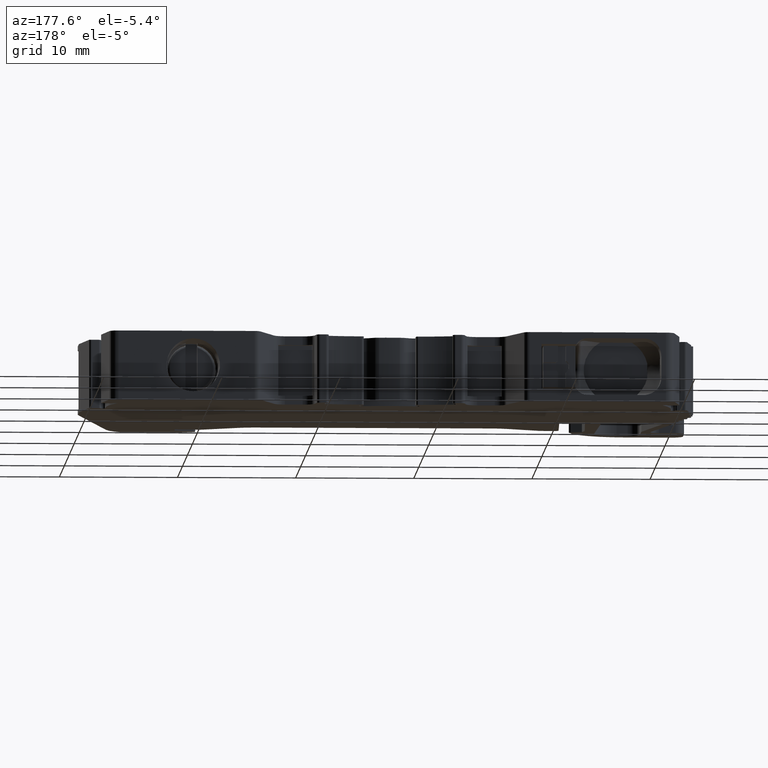
[diagram: clean part render]
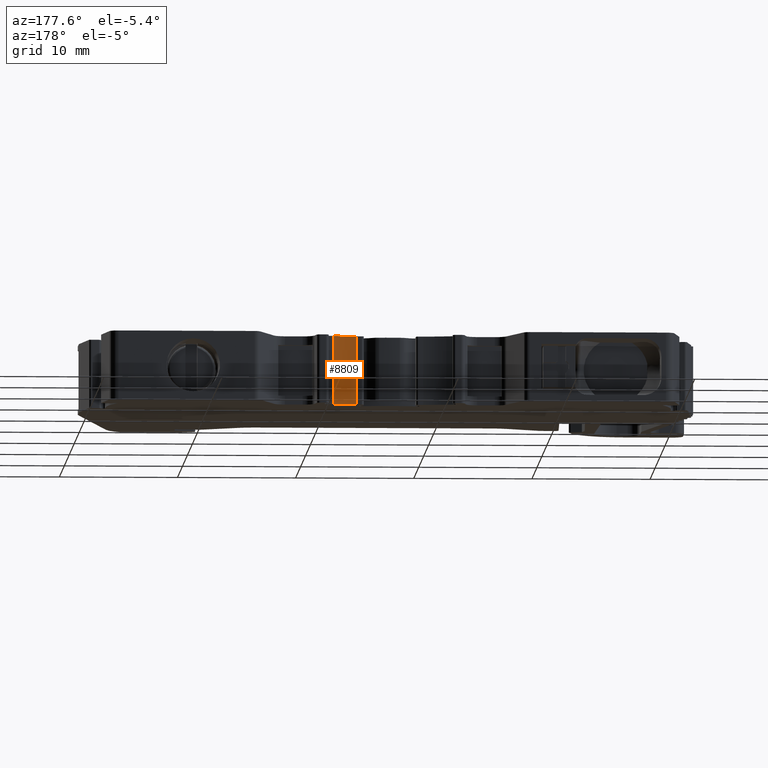
[diagram: same view with one face highlighted and labeled with its STEP entity id]
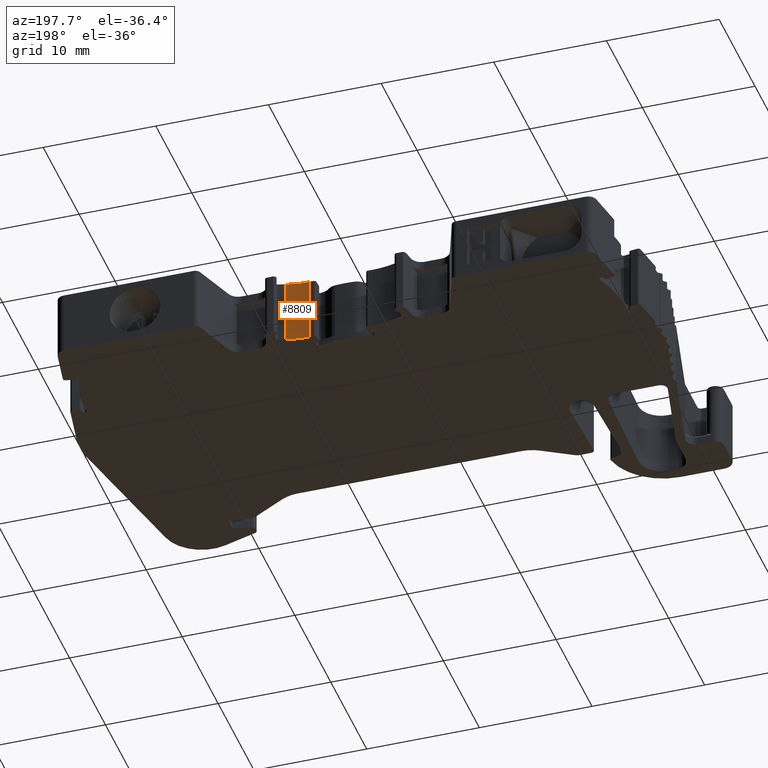
[diagram: same view with one face highlighted and labeled with its STEP entity id]
A machine part, auxiliary view. The second image highlights one B-rep face of the part: STEP entity #8809.
A second angle (auxiliary view) of the same face is appended — the face is thin or edge-on in the first view.
In plain terms, the highlighted cylindrical surface (partial cylindrical patch) has radius 7.4999 mm, axis along (0, 0, -1).
Its self-contained STEP definition (entity closure, byte-faithful):
#104 = FACE_OUTER_BOUND ( 'NONE', #768, .T. ) ;
#327 = VERTEX_POINT ( 'NONE', #5393 ) ;
#720 = VERTEX_POINT ( 'NONE', #5381 ) ;
#768 = EDGE_LOOP ( 'NONE', ( #6395, #1929, #3671, #7746 ) ) ;
#828 = VERTEX_POINT ( 'NONE', #6400 ) ;
#1099 = VECTOR ( 'NONE', #8065, 1000.000000000000000 ) ;
#1126 = EDGE_CURVE ( 'NONE', #327, #1543, #9950, .T. ) ;
#1543 = VERTEX_POINT ( 'NONE', #2136 ) ;
#1656 = EDGE_CURVE ( 'NONE', #720, #828, #2315, .T. ) ;
#1929 = ORIENTED_EDGE ( 'NONE', *, *, #1656, .T. ) ;
#2053 = DIRECTION ( 'NONE',  ( 0.0000000000000000000, 0.0000000000000000000, -1.000000000000000000 ) ) ;
#2136 = CARTESIAN_POINT ( 'NONE',  ( 1939.132851718220081, 516.4746394987059830, -14.69999999999999929 ) ) ;
#2315 = CIRCLE ( 'NONE', #9053, 7.499916811230411540 ) ;
#2642 = LINE ( 'NONE', #4416, #1099 ) ;
#2867 = LINE ( 'NONE', #8116, #5345 ) ;
#3671 = ORIENTED_EDGE ( 'NONE', *, *, #11102, .T. ) ;
#4028 = CARTESIAN_POINT ( 'NONE',  ( 1937.191492159039854, 523.7189389981300565, -8.900000000000000355 ) ) ;
#4416 = CARTESIAN_POINT ( 'NONE',  ( 1937.191714885914735, 516.2190221902069425, -8.900000000000000355 ) ) ;
#5044 = AXIS2_PLACEMENT_3D ( 'NONE', #8680, #5309, #8794 ) ;
#5309 = DIRECTION ( 'NONE',  ( 0.0000000000000000000, 0.0000000000000000000, 1.000000000000000000 ) ) ;
#5345 = VECTOR ( 'NONE', #2053, 1000.000000000000000 ) ;
#5381 = CARTESIAN_POINT ( 'NONE',  ( 1937.191714885914735, 516.2190221902069425, -8.900000000000000355 ) ) ;
#5393 = CARTESIAN_POINT ( 'NONE',  ( 1937.191714885914735, 516.2190221902069425, -14.69999999999999929 ) ) ;
#6395 = ORIENTED_EDGE ( 'NONE', *, *, #7182, .F. ) ;
#6400 = CARTESIAN_POINT ( 'NONE',  ( 1939.132851718220081, 516.4746394987059830, -8.900000000000000355 ) ) ;
#6488 = CARTESIAN_POINT ( 'NONE',  ( 1937.191492159039854, 523.7189389981300565, -8.900000000000000355 ) ) ;
#7090 = CYLINDRICAL_SURFACE ( 'NONE', #7519, 7.499916811230189495 ) ;
#7150 = DIRECTION ( 'NONE',  ( 1.000000000000000000, 0.0000000000000000000, 0.0000000000000000000 ) ) ;
#7182 = EDGE_CURVE ( 'NONE', #720, #327, #2642, .T. ) ;
#7519 = AXIS2_PLACEMENT_3D ( 'NONE', #6488, #8002, #7150 ) ;
#7568 = DIRECTION ( 'NONE',  ( 1.000000000000000000, 0.0000000000000000000, 0.0000000000000000000 ) ) ;
#7746 = ORIENTED_EDGE ( 'NONE', *, *, #1126, .F. ) ;
#8002 = DIRECTION ( 'NONE',  ( 0.0000000000000000000, 0.0000000000000000000, -1.000000000000000000 ) ) ;
#8065 = DIRECTION ( 'NONE',  ( 0.0000000000000000000, 0.0000000000000000000, -1.000000000000000000 ) ) ;
#8116 = CARTESIAN_POINT ( 'NONE',  ( 1939.132851718220081, 516.4746394987059830, -8.900000000000000355 ) ) ;
#8421 = DIRECTION ( 'NONE',  ( 0.0000000000000000000, 0.0000000000000000000, 1.000000000000000000 ) ) ;
#8680 = CARTESIAN_POINT ( 'NONE',  ( 1937.191492159039854, 523.7189389981300565, -14.69999999999999929 ) ) ;
#8794 = DIRECTION ( 'NONE',  ( -1.000000000000000000, 0.0000000000000000000, 0.0000000000000000000 ) ) ;
#8809 = ADVANCED_FACE ( 'NONE', ( #104 ), #7090, .F. ) ;
#9053 = AXIS2_PLACEMENT_3D ( 'NONE', #4028, #8421, #7568 ) ;
#9950 = CIRCLE ( 'NONE', #5044, 7.499916811230411540 ) ;
#11102 = EDGE_CURVE ( 'NONE', #828, #1543, #2867, .T. ) ;